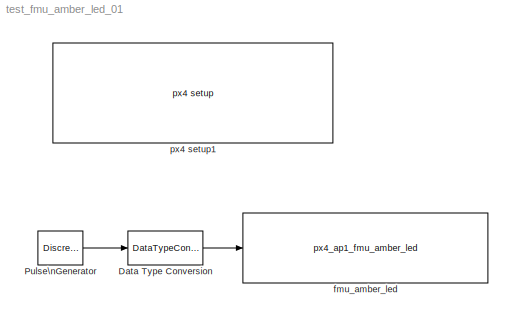
MODEL test_fmu_amber_led_01
KIND model
CONFIG InitFcn = px4_ap1_mdl_callback('check_model');
BLOCK [DataTypeConversion] Data Type Conversion
  OutDataTypeStr = boolean
  RndMeth = Floor
  SID = 1
  SaturateOnIntegerOverflow = off
BLOCK [DiscretePulseGenerator] Pulse\nGenerator
  Ports = [0, 1]
  PulseType = Time based
  PulseWidth = 10
  SID = 2
BLOCK [Reference] fmu_amber_led  REF=px4_ap1_fmu_amber_led_lib/px4_ap1_fmu_amber_led
  Description = TODO
  Ports = [1]
  SID = 3
  SourceBlock = px4_ap1_fmu_amber_led_lib/px4_ap1_fmu_amber_led
  SourceType = PX4_FMU_Amber_LED
BLOCK [Reference] px4 setup1  REF=px4_ap1_px4setup_lib/px4 setup
  Ports = []
  SID = 4
  SampleTimeValue = 0.001
  SourceBlock = px4_ap1_px4setup_lib/px4 setup
  SourceType = PX4_Target_Setup
  cbBuild = on
  cbPort = COM3
  cbUpload = off
  cpuLoad = off
  debugmode = on
LINE Data Type Conversion:1 -> fmu_amber_led:1
LINE Pulse\nGenerator:1 -> Data Type Conversion:1
